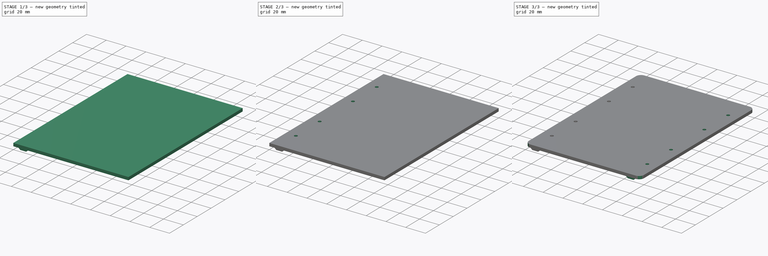
[diagram: build sequence overview — one tinted view per stage of 3, left to right]
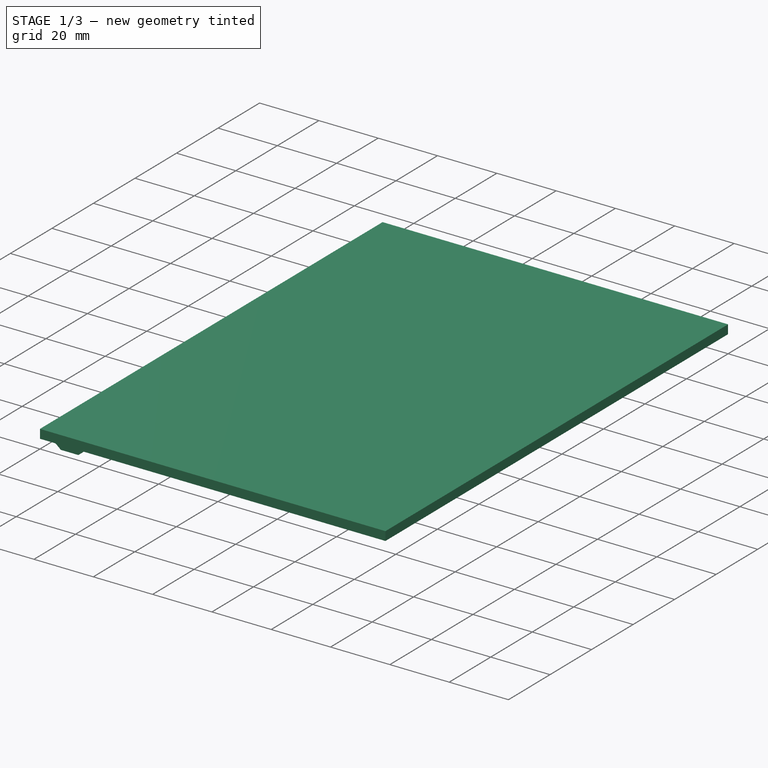
[diagram: stage 1 of 3 — iso view after this stage's code; geometry added in this stage tinted green]
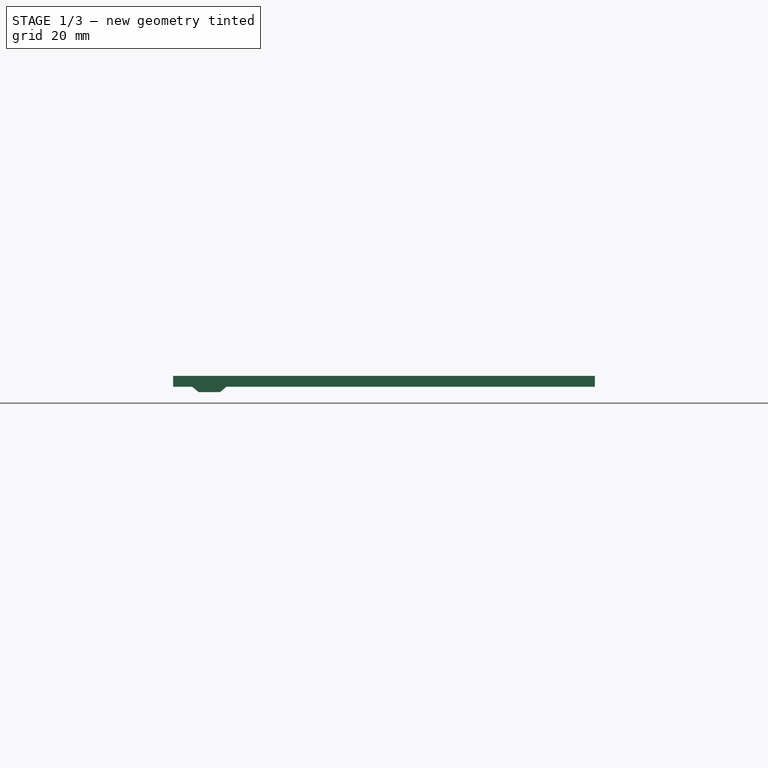
[diagram: stage 1 of 3 — front view after this stage's code; geometry added in this stage tinted green]
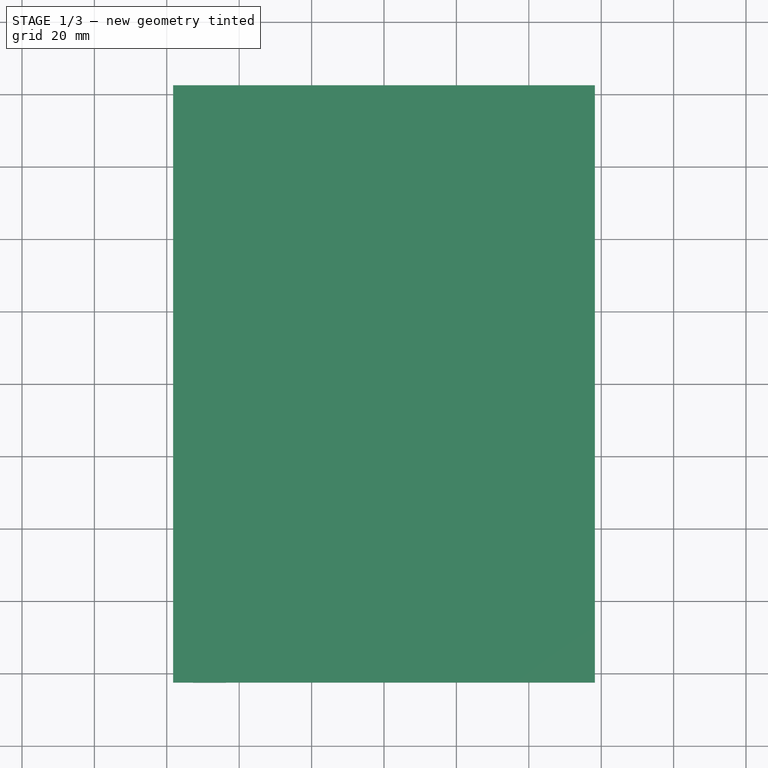
[diagram: stage 1 of 3 — top view after this stage's code; geometry added in this stage tinted green]
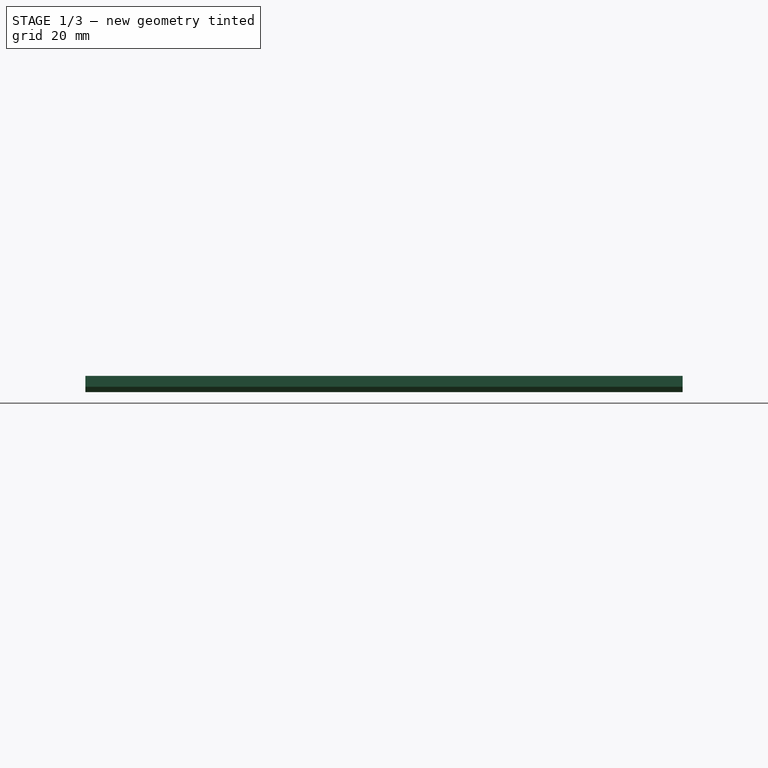
[diagram: stage 1 of 3 — right view after this stage's code; geometry added in this stage tinted green]
FCSTD DOCUMENT  (FreeCAD 1.0R39109 (Git))
Label: base-inferio-165mm
License: All rights reserved
LicenseURL: https://en.wikipedia.org/wiki/All_rights_reserved
objects: Sketcher::SketchObject×4, PartDesign::Pad×2, PartDesign::Pocket×2, PartDesign::Mirrored×1, PartDesign::Fillet×1, PartDesign::Body×1
note: 26 computed .brp shape members not serialized (recipe doc carries the construction recipe); baked Part::Feature solids carry a one-line shape summary decoded from their .brp

FEATURE [Sketcher::SketchObject] Sketch
  ArcFitTolerance = 0
  AttachmentSupport = -> [XY_Plane]
  FullyConstrained = true
  MakeInternals = false
  MapMode = 5
  sketch-geometry (4):
    g0: LineSegment StartX=-58.25 StartY=82.5 StartZ=0 EndX=58.25 EndY=82.5 EndZ=0
    g1: LineSegment StartX=58.25 StartY=82.5 StartZ=0 EndX=58.25 EndY=-82.5 EndZ=0
    g2: LineSegment StartX=58.25 StartY=-82.5 StartZ=0 EndX=-58.25 EndY=-82.5 EndZ=0
    g3: LineSegment StartX=-58.25 StartY=-82.5 StartZ=0 EndX=-58.25 EndY=82.5 EndZ=0
  constraints (10):
    c: Coincident(g0,g1)
    c: Coincident(g1,g2)
    c: Coincident(g2,g3)
    c: Coincident(g3,g0)
    c: Horizontal(g2)
    c: Vertical(g1)
    c: DistanceY(g1,g0) = 165
    c: DistanceX(g2,g2) = 116.5
    c: Symmetric(g0,g0,g-2)
    c: Symmetric(g2,g0,g-1)
FEATURE [PartDesign::Pad] Pad
  Direction = (0,0,1)
  Length = 3
  Length2 = 10
  Profile = -> Sketch
  ReferenceAxis = -> Sketch [N_Axis]
  Suppressed = false
  Type = 0
FEATURE [Sketcher::SketchObject] Sketch001
  ArcFitTolerance = 0
  AttachmentSupport = -> [Pad]
  ExternalGeometry = -> [Pad]
  FullyConstrained = true
  MakeInternals = false
  MapMode = 5
  Placement = pos=(0,-82.5,0) rot=(1,0,0;1.5708rad)
  sketch-geometry (6):
    g0: LineSegment [constr] StartX=-58.25 StartY=0 StartZ=0 EndX=-38.25 EndY=8.725e-13 EndZ=0
    g1: LineSegment [constr] StartX=-48.25 StartY=4.362e-13 StartZ=0 EndX=-48.25 EndY=-1.5 EndZ=0
    g2: LineSegment StartX=-53 StartY=2.289e-13 StartZ=0 EndX=-43.5 EndY=-1.7615e-12 EndZ=0
    g3: LineSegment StartX=-43.5 StartY=-1.7615e-12 StartZ=0 EndX=-45.3 EndY=-1.5 EndZ=0
    g4: LineSegment StartX=-45.3 StartY=-1.5 StartZ=0 EndX=-51.2 EndY=-1.5 EndZ=0
    g5: LineSegment StartX=-51.2 StartY=-1.5 StartZ=0 EndX=-53 EndY=2.289e-13 EndZ=0
  constraints (16):
    c: Vertical(g1)
    c: Coincident(g3,g2)
    c: Coincident(g5,g2)
    c: Coincident(g4,g3)
    c: Coincident(g0,g-3)
    c: Symmetric(g0,g0,g1)
    c: PointOnObject(g1,g0)
    c: Symmetric(g2,g2,g1)
    c: Coincident(g4,g5)
    c: Symmetric(g4,g3,g1)
    c: DistanceX(g2,g2) = 9.5
    c: DistanceX(g4,g4) = 5.9
    c: DistanceY(g4,g2) = 1.5
    c: DistanceX(g0,g0) = 20
    c: PointOnObject(g1,g4)
    c: PointOnObject(g2,g0)
FEATURE [PartDesign::Pad] Pad001
  BaseFeature = -> Pad
  Direction = (0,-1,2e-16)
  Length = 10
  Length2 = 10
  Profile = -> Sketch001
  ReferenceAxis = -> Sketch001 [N_Axis]
  Suppressed = false
  Type = 3
  UpToFace = -> Pad [Face1]
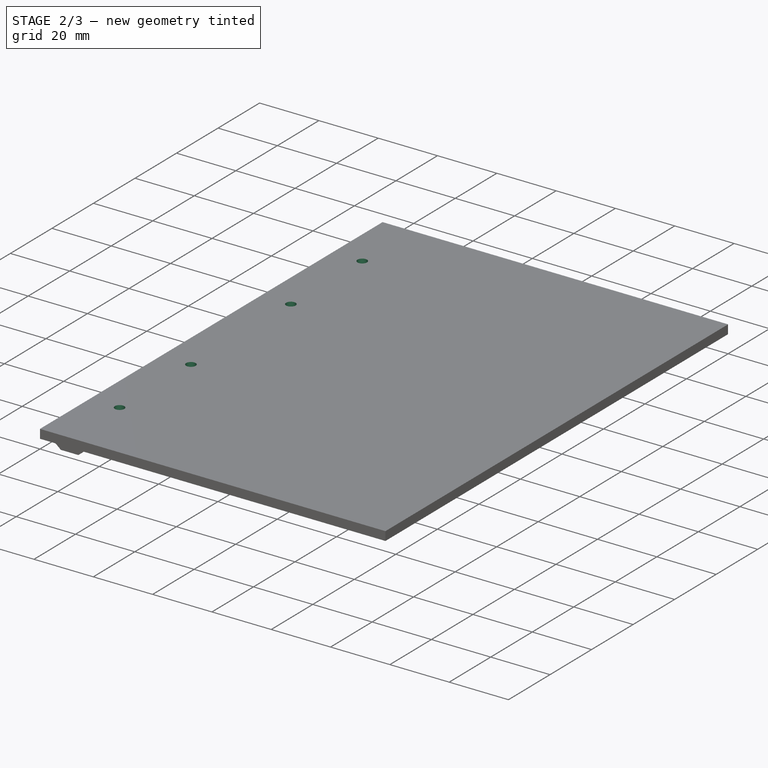
[diagram: stage 2 of 3 — iso view after this stage's code; geometry added in this stage tinted green]
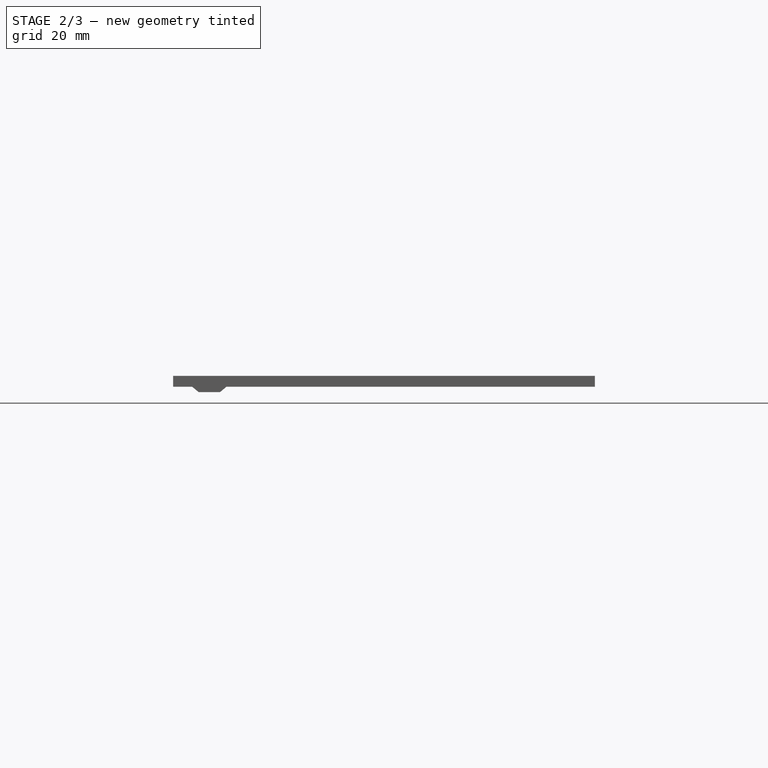
[diagram: stage 2 of 3 — front view after this stage's code; geometry added in this stage tinted green]
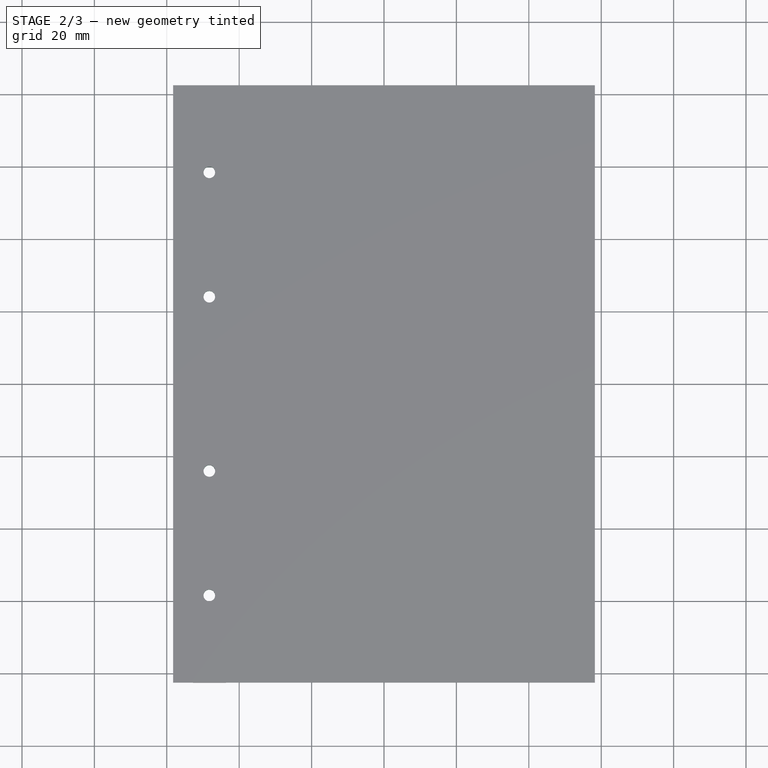
[diagram: stage 2 of 3 — top view after this stage's code; geometry added in this stage tinted green]
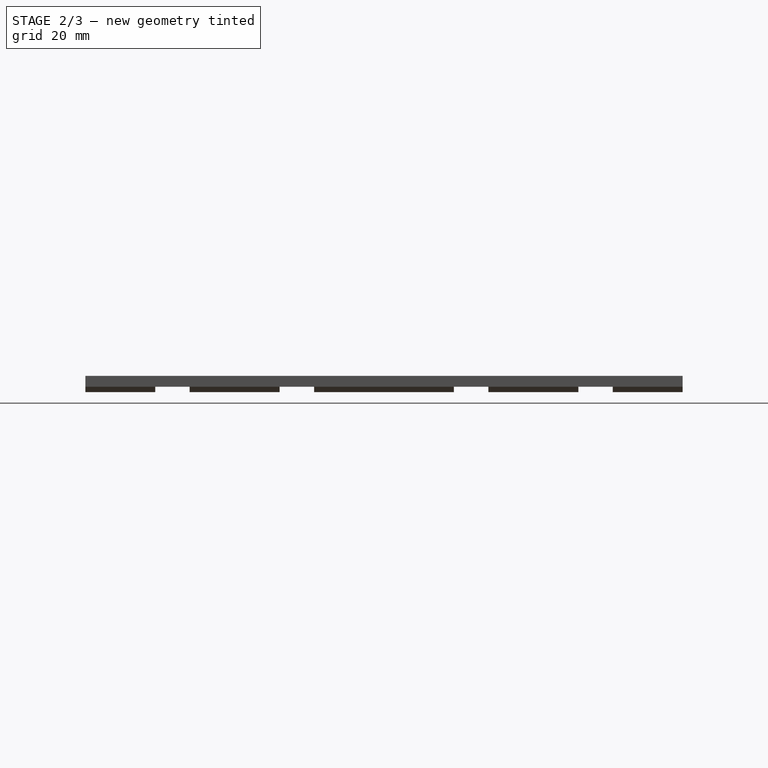
[diagram: stage 2 of 3 — right view after this stage's code; geometry added in this stage tinted green]
FEATURE [Sketcher::SketchObject] Sketch002
  ArcFitTolerance = 0
  AttachmentSupport = -> [Pad001]
  ExternalGeometry = -> [Pad001]
  FullyConstrained = true
  MakeInternals = false
  MapMode = 5
  Placement = pos=(-1.634e-13,-3e-16,-1.5) rot=(1,0,0;3.14159rad)
  sketch-geometry (10):
    g0: Circle CenterX=-48.25 CenterY=-24.064 CenterZ=0 NormalX=0 NormalY=0 NormalZ=1 AngleXU=0 Radius=1.6
    g1: Circle CenterX=-48.25 CenterY=-58.436 CenterZ=0 NormalX=0 NormalY=0 NormalZ=1 AngleXU=0 Radius=1.6
    g2: LineSegment [constr] StartX=-53 StartY=-41.25 StartZ=0 EndX=-43.5 EndY=-41.25 EndZ=0
    g3: LineSegment [constr] StartX=-48.25 StartY=-24.064 StartZ=0 EndX=-48.25 EndY=-58.436 EndZ=0
    g4: LineSegment [constr] StartX=-53 StartY=-82.5 StartZ=0 EndX=-53 EndY=0 EndZ=0
    g5: LineSegment [constr] StartX=-53 StartY=0 StartZ=0 EndX=-53 EndY=82.5 EndZ=0
    g6: Circle CenterX=-48.25 CenterY=58.436 CenterZ=0 NormalX=0 NormalY=0 NormalZ=1 AngleXU=0 Radius=1.6
    g7: Circle CenterX=-48.25 CenterY=24.064 CenterZ=0 NormalX=0 NormalY=0 NormalZ=1 AngleXU=0 Radius=1.6
    g8: LineSegment [constr] StartX=-48.25 StartY=58.436 StartZ=0 EndX=-48.25 EndY=24.064 EndZ=0
    g9: LineSegment [constr] StartX=-53 StartY=41.25 StartZ=0 EndX=-43.5 EndY=41.25 EndZ=0
  constraints (25):
    c: PointOnObject(g2,g-3)
    c: PointOnObject(g2,g-4)
    c: Horizontal(g2)
    c: Coincident(g3,g0)
    c: Coincident(g3,g1)
    c: Symmetric(g1,g0,g2)
    c: Equal(g1,g0)
    c: Symmetric(g2,g2,g3)
    c: Diameter(g0) = 3.2
    c: Coincident(g4,g-3)
    c: PointOnObject(g4,g-1)
    c: Symmetric(g4,g4,g2)
    c: DistanceY(g3,g3) = 34.372
    c: Coincident(g5,g4)
    c: Coincident(g5,g-3)
    c: Vertical(g6,g0)
    c: Equal(g7,g6)
    c: Equal(g6,g1)
    c: Coincident(g8,g6)
    c: Coincident(g8,g7)
    c: PointOnObject(g9,g5)
    c: PointOnObject(g9,g-4)
    c: Symmetric(g4,g5,g9)
    c: Symmetric(g6,g7,g9)
    c: Equal(g8,g3)
FEATURE [PartDesign::Pocket] Pocket
  BaseFeature = -> Pad001
  Direction = (1.089e-13,2e-16,1)
  Length = 0
  Length2 = 5
  Profile = -> Sketch002
  ReferenceAxis = -> Sketch002 [N_Axis]
  Suppressed = false
  Type = 3
  UpToFace = -> Pad001 [Face7]
FEATURE [Sketcher::SketchObject] Sketch003
  ArcFitTolerance = 0
  AttachmentSupport = -> [Pocket]
  ExternalGeometry = -> [Pocket]
  FullyConstrained = true
  MakeInternals = false
  MapMode = 5
  Placement = pos=(-1.634e-13,-3e-16,-1.5) rot=(1,0,0;3.14159rad)
  sketch-geometry (24):
    g0: Circle [constr] CenterX=-48.25 CenterY=24.064 CenterZ=0 NormalX=0 NormalY=0 NormalZ=1 AngleXU=0 Radius=4.75
    g1: Circle [constr] CenterX=-48.25 CenterY=58.436 CenterZ=0 NormalX=0 NormalY=0 NormalZ=1 AngleXU=0 Radius=4.75
    g2: Circle [constr] CenterX=-48.25 CenterY=-24.064 CenterZ=0 NormalX=0 NormalY=0 NormalZ=1 AngleXU=0 Radius=4.75
    g3: Circle [constr] CenterX=-48.25 CenterY=-58.436 CenterZ=0 NormalX=0 NormalY=0 NormalZ=1 AngleXU=0 Radius=4.75
    g4: LineSegment StartX=-43.5 StartY=28.814 StartZ=0 EndX=-53 EndY=28.814 EndZ=0
    g5: LineSegment StartX=-53 StartY=28.814 StartZ=0 EndX=-53 EndY=19.314 EndZ=0
    g6: LineSegment StartX=-53 StartY=19.314 StartZ=0 EndX=-43.5 EndY=19.314 EndZ=0
    g7: LineSegment StartX=-43.5 StartY=19.314 StartZ=0 EndX=-43.5 EndY=28.814 EndZ=0
    g8: Circle [constr] CenterX=-48.25 CenterY=24.064 CenterZ=0 NormalX=0 NormalY=0 NormalZ=1 AngleXU=0 Radius=6.71751
    g9: LineSegment StartX=-43.5 StartY=63.186 StartZ=0 EndX=-53 EndY=63.186 EndZ=0
    g10: LineSegment StartX=-53 StartY=63.186 StartZ=0 EndX=-53 EndY=53.686 EndZ=0
    g11: LineSegment StartX=-53 StartY=53.686 StartZ=0 EndX=-43.5 EndY=53.686 EndZ=0
    g12: LineSegment StartX=-43.5 StartY=53.686 StartZ=0 EndX=-43.5 EndY=63.186 EndZ=0
    g13: Circle [constr] CenterX=-48.25 CenterY=58.436 CenterZ=0 NormalX=0 NormalY=0 NormalZ=1 AngleXU=0 Radius=6.71751
    g14: LineSegment StartX=-43.5 StartY=-19.314 StartZ=0 EndX=-53 EndY=-19.314 EndZ=0
    g15: LineSegment StartX=-53 StartY=-19.314 StartZ=0 EndX=-53 EndY=-28.814 EndZ=0
    g16: LineSegment StartX=-53 StartY=-28.814 StartZ=0 EndX=-43.5 EndY=-28.814 EndZ=0
    g17: LineSegment StartX=-43.5 StartY=-28.814 StartZ=0 EndX=-43.5 EndY=-19.314 EndZ=0
    g18: Circle [constr] CenterX=-48.25 CenterY=-24.064 CenterZ=0 NormalX=0 NormalY=0 NormalZ=1 AngleXU=0 Radius=6.71751
    g19: LineSegment StartX=-43.5 StartY=-53.686 StartZ=0 EndX=-53 EndY=-53.686 EndZ=0
    g20: LineSegment StartX=-53 StartY=-53.686 StartZ=0 EndX=-53 EndY=-63.186 EndZ=0
    g21: LineSegment StartX=-53 StartY=-63.186 StartZ=0 EndX=-43.5 EndY=-63.186 EndZ=0
    g22: LineSegment StartX=-43.5 StartY=-63.186 StartZ=0 EndX=-43.5 EndY=-53.686 EndZ=0
    g23: Circle [constr] CenterX=-48.25 CenterY=-58.436 CenterZ=0 NormalX=0 NormalY=0 NormalZ=1 AngleXU=0 Radius=6.71751
  constraints (64):
    c: Coincident(g0,g-3)
    c: Coincident(g1,g-4)
    c: Coincident(g2,g-5)
    c: Coincident(g3,g-6)
    c: Equal(g3,g2)
    c: Equal(g2,g1)
    c: Equal(g1,g0)
    c: Tangent(g0,g-7)
    c: Coincident(g4,g5)
    c: Coincident(g5,g6)
    c: Coincident(g6,g7)
    c: Coincident(g7,g4)
    c: Equal(g4,g5)
    c: Equal(g4,g6)
    c: Equal(g4,g7)
    c: PointOnObject(g4,g8)
    c: PointOnObject(g5,g8)
    c: PointOnObject(g6,g8)
    c: PointOnObject(g7,g8)
    c: Coincident(g8,g0)
    c: Coincident(g9,g10)
    c: Coincident(g10,g11)
    c: Coincident(g11,g12)
    c: Coincident(g12,g9)
    c: Equal(g9,g10)
    c: Equal(g9,g11)
    c: Equal(g9,g12)
    c: PointOnObject(g9,g13)
    c: PointOnObject(g10,g13)
    c: PointOnObject(g11,g13)
    c: PointOnObject(g12,g13)
    c: Coincident(g13,g1)
    c: Coincident(g14,g15)
    c: Coincident(g15,g16)
    c: Coincident(g16,g17)
    c: Coincident(g17,g14)
    c: Equal(g14,g15)
    c: Equal(g14,g16)
    c: Equal(g14,g17)
    c: PointOnObject(g14,g18)
    c: PointOnObject(g15,g18)
    c: PointOnObject(g16,g18)
    c: PointOnObject(g17,g18)
    c: Coincident(g18,g2)
    c: Coincident(g19,g20)
    c: Coincident(g20,g21)
    c: Coincident(g21,g22)
    c: Coincident(g22,g19)
    c: Equal(g19,g20)
    c: Equal(g19,g21)
    c: Equal(g19,g22)
    c: PointOnObject(g19,g23)
    c: PointOnObject(g20,g23)
    c: PointOnObject(g21,g23)
    c: PointOnObject(g22,g23)
    c: Coincident(g23,g3)
    c: Horizontal(g19)
    c: Horizontal(g14)
    c: Horizontal(g9)
    c: Equal(g13,g18)
    c: Equal(g18,g23)
    c: Tangent(g9,g1)
    c: Equal(g8,g13)
    c: Horizontal(g4)
FEATURE [PartDesign::Pocket] Pocket001
  BaseFeature = -> Pocket
  Direction = (1.089e-13,2e-16,1)
  Length = 0
  Length2 = 5
  Profile = -> Sketch003
  ReferenceAxis = -> Sketch003 [N_Axis]
  Suppressed = false
  Type = 3
  UpToFace = -> Pocket [Face6]
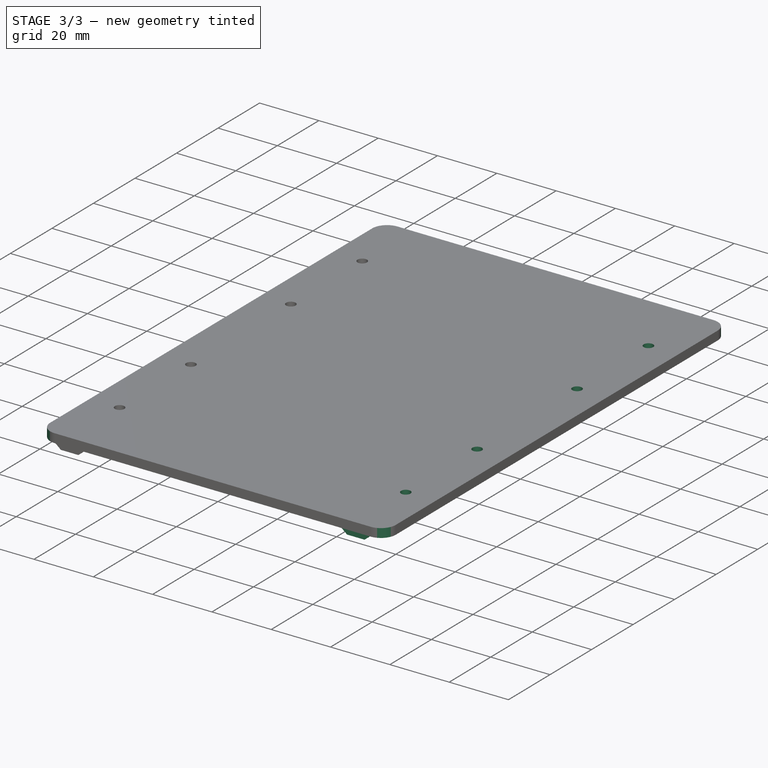
[diagram: stage 3 of 3 — iso view after this stage's code; geometry added in this stage tinted green]
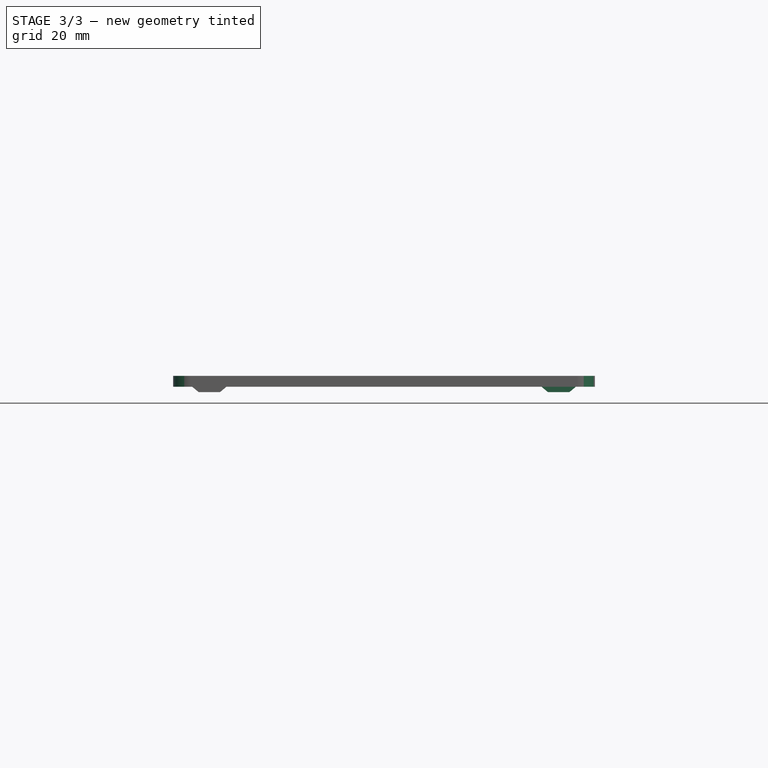
[diagram: stage 3 of 3 — front view after this stage's code; geometry added in this stage tinted green]
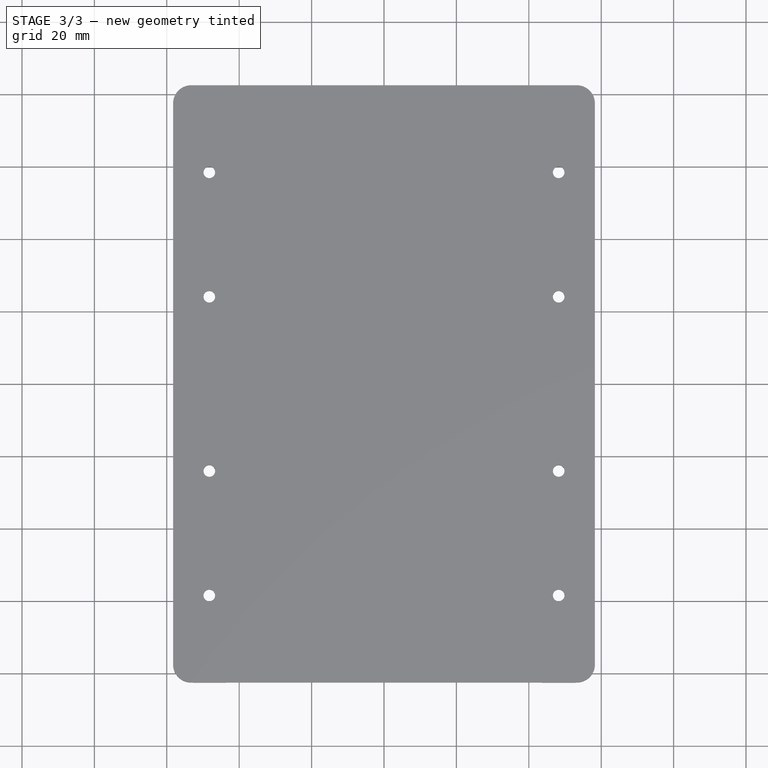
[diagram: stage 3 of 3 — top view after this stage's code; geometry added in this stage tinted green]
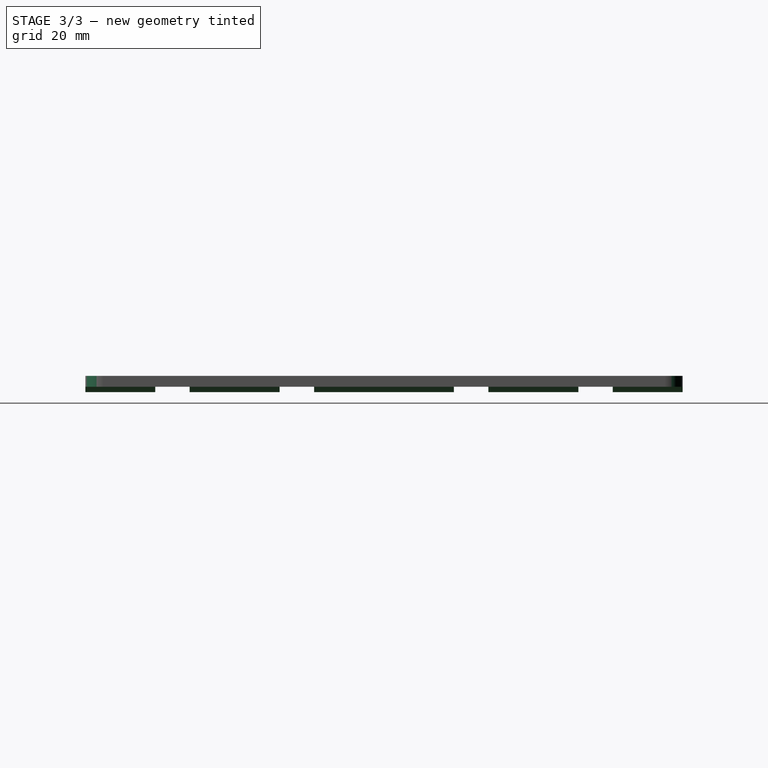
[diagram: stage 3 of 3 — right view after this stage's code; geometry added in this stage tinted green]
FEATURE [PartDesign::Mirrored] Mirrored
  BaseFeature = -> Pocket001
  MirrorPlane = -> YZ_Plane
  Originals = -> [Pad001,Pocket,Pocket001]
  Suppressed = false
  TransformMode = 0
FEATURE [PartDesign::Fillet] Fillet
  Base = -> Mirrored [Edge2,Edge1,Edge12,Edge9]
  BaseFeature = -> Mirrored
  Radius = 5
  SupportTransform = false
  Suppressed = false
  UseAllEdges = false
FEATURE [PartDesign::Body] Body
  AllowCompound = false
  Group = -> [Sketch,Pad,Sketch001,Pad001,Sketch002,Pocket,Sketch003,Pocket001,Mirrored,Fillet]
  Origin = -> Origin
  Tip = -> Fillet
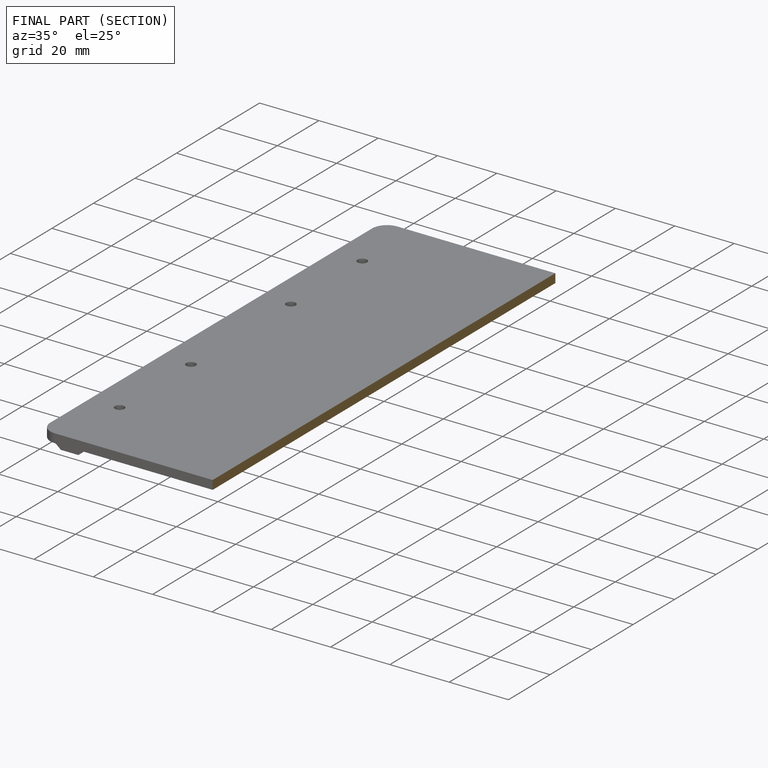
[diagram: finished part — half-section view (interior)]
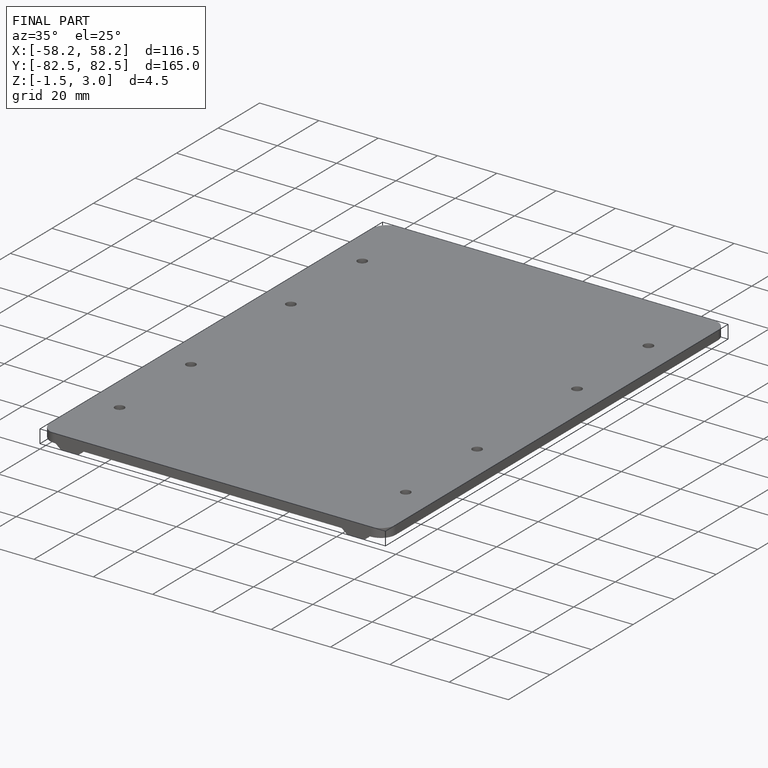
[diagram: finished part — iso view with bounding-box wireframe]
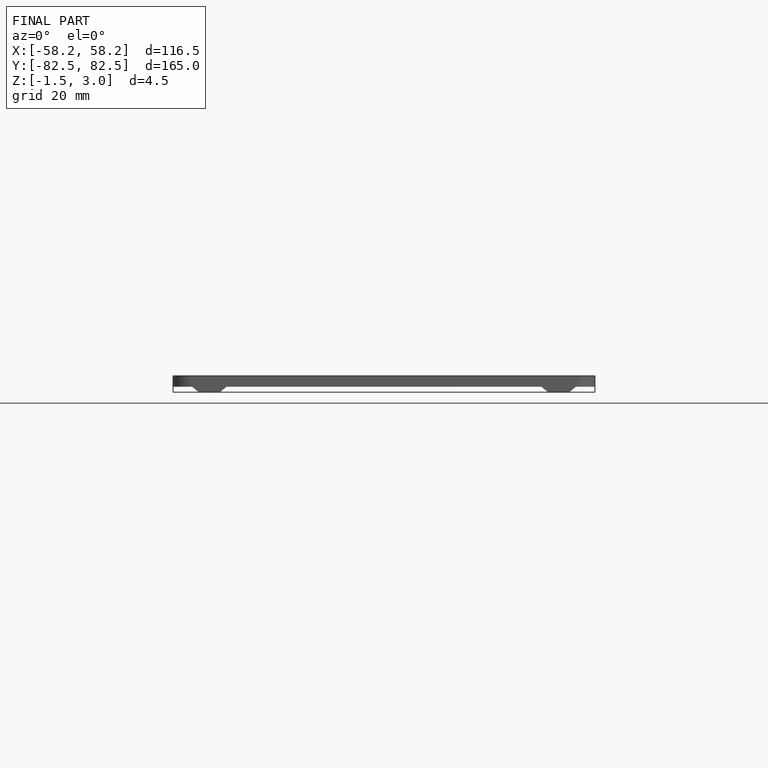
[diagram: finished part — front view with bounding-box wireframe]
